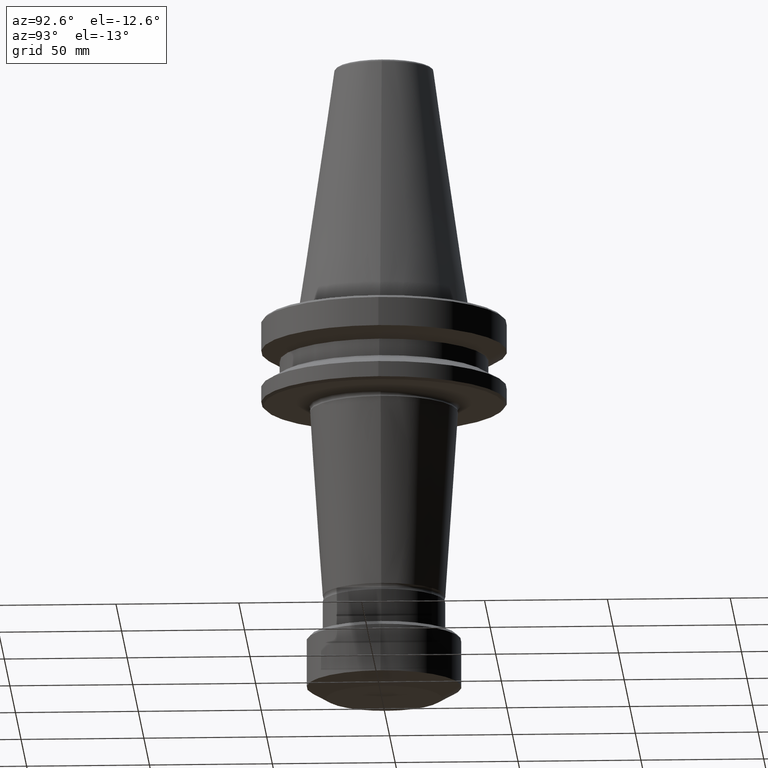
[diagram: clean part render]
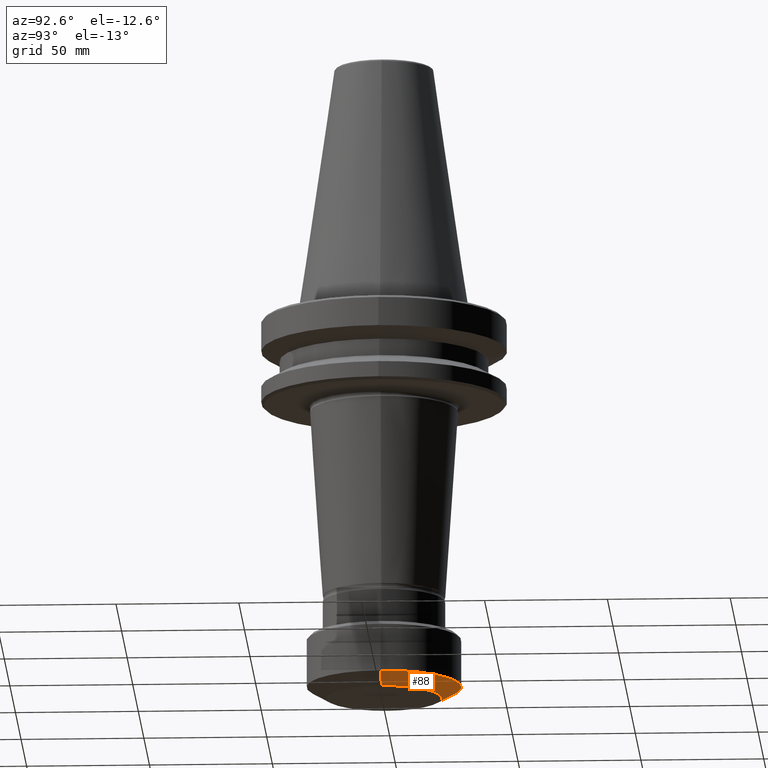
[diagram: same view with one face highlighted and labeled with its STEP entity id]
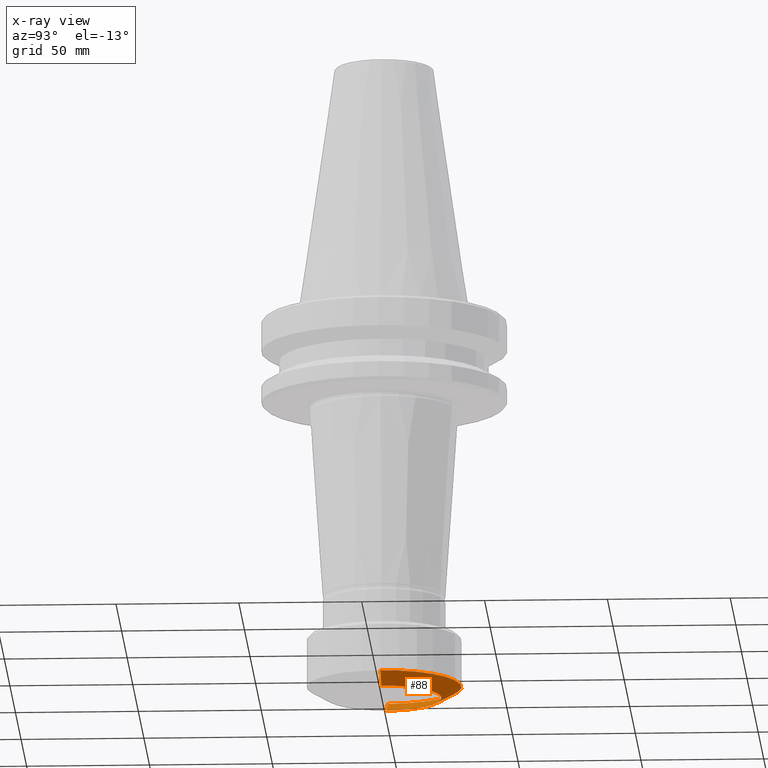
[diagram: x-ray of the same camera — body ghosted, the highlighted face saturated]
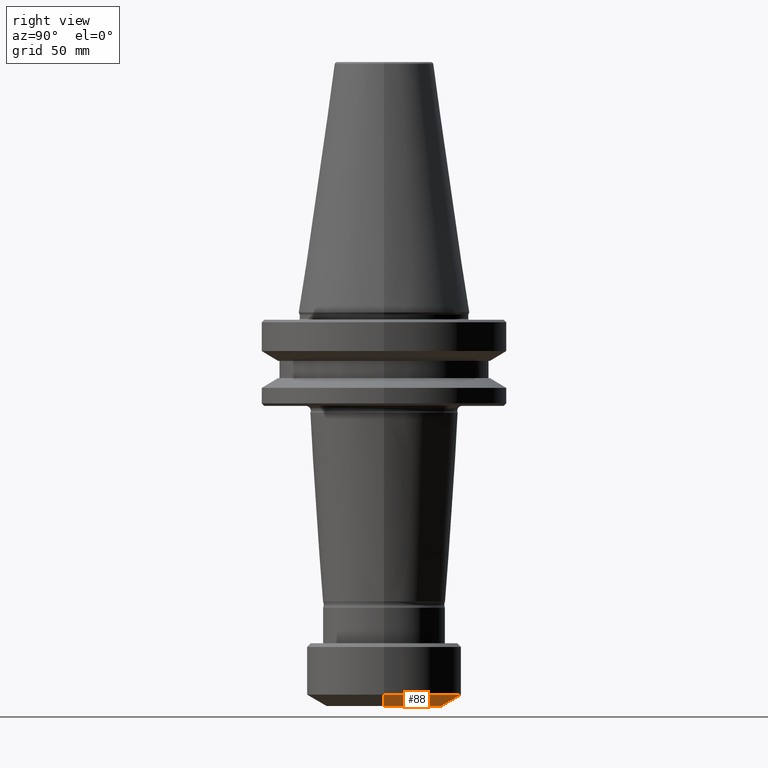
[diagram: same view with one face highlighted and labeled with its STEP entity id]
A machine part, auxiliary view. The second image highlights one B-rep face of the part: STEP entity #88.
The next image is the same camera in x-ray: the body ghosted, the highlighted face saturated — about 0% of this face is hidden behind the body in this view.
A second angle (right view) of the same face is appended — the face is thin or edge-on in the first view.
In plain terms, the highlighted conical surface has half-angle 60 deg.
Its self-contained STEP definition (entity closure, byte-faithful):
#5 = CARTESIAN_POINT ( 'NONE',  ( -23.49999999996406400, 3.367778697653022800E-015, -160.0046026282246900 ) ) ;
#7 = EDGE_CURVE ( 'NONE', #268, #89, #1022, .T. ) ;
#33 = CARTESIAN_POINT ( 'NONE',  ( 0.0000000000000000000, 0.0000000000000000000, -160.0046026282246900 ) ) ;
#88 = ADVANCED_FACE ( 'NONE', ( #470 ), #191, .T. ) ;
#89 = VERTEX_POINT ( 'NONE', #5 ) ;
#191 = CONICAL_SURFACE ( 'NONE', #900, 23.49999999996406400, 1.047197551196597600 ) ;
#251 = CARTESIAN_POINT ( 'NONE',  ( -23.49999999996406400, 2.877919977991879300E-015, -160.0046026282246900 ) ) ;
#259 = DIRECTION ( 'NONE',  ( -0.0000000000000000000, -0.0000000000000000000, 1.000000000000000000 ) ) ;
#260 = DIRECTION ( 'NONE',  ( -0.0000000000000000000, -0.0000000000000000000, 1.000000000000000000 ) ) ;
#264 = VERTEX_POINT ( 'NONE', #948 ) ;
#268 = VERTEX_POINT ( 'NONE', #684 ) ;
#271 = DIRECTION ( 'NONE',  ( -0.8660254037844386000, 1.060575238724906800E-016, 0.5000000000000001100 ) ) ;
#275 = DIRECTION ( 'NONE',  ( 1.000000000000000000, 0.0000000000000000000, 0.0000000000000000000 ) ) ;
#345 = CARTESIAN_POINT ( 'NONE',  ( 23.49999999996406400, 0.0000000000000000000, -160.0046026282246900 ) ) ;
#414 = DIRECTION ( 'NONE',  ( -0.0000000000000000000, -0.0000000000000000000, 1.000000000000000000 ) ) ;
#441 = DIRECTION ( 'NONE',  ( 1.000000000000000000, 0.0000000000000000000, 0.0000000000000000000 ) ) ;
#450 = VERTEX_POINT ( 'NONE', #656 ) ;
#470 = FACE_OUTER_BOUND ( 'NONE', #828, .T. ) ;
#541 = EDGE_CURVE ( 'NONE', #450, #264, #542, .T. ) ;
#542 = CIRCLE ( 'NONE', #646, 31.50000000000002800 ) ;
#547 = CARTESIAN_POINT ( 'NONE',  ( 0.0000000000000000000, 0.0000000000000000000, -160.0046026282246900 ) ) ;
#591 = ORIENTED_EDGE ( 'NONE', *, *, #1266, .F. ) ;
#602 = EDGE_CURVE ( 'NONE', #89, #264, #1300, .T. ) ;
#646 = AXIS2_PLACEMENT_3D ( 'NONE', #1232, #259, #275 ) ;
#656 = CARTESIAN_POINT ( 'NONE',  ( 31.50000000000002800, 0.0000000000000000000, -155.3858004746869300 ) ) ;
#671 = VECTOR ( 'NONE', #788, 1000.000000000000000 ) ;
#684 = CARTESIAN_POINT ( 'NONE',  ( 23.49999999996406400, 0.0000000000000000000, -160.0046026282246900 ) ) ;
#685 = ORIENTED_EDGE ( 'NONE', *, *, #7, .T. ) ;
#788 = DIRECTION ( 'NONE',  ( 0.8660254037844386000, 0.0000000000000000000, 0.5000000000000001100 ) ) ;
#828 = EDGE_LOOP ( 'NONE', ( #685, #983, #1328, #591 ) ) ;
#900 = AXIS2_PLACEMENT_3D ( 'NONE', #33, #414, #1169 ) ;
#948 = CARTESIAN_POINT ( 'NONE',  ( -31.50000000000002800, 3.857637417314166600E-015, -155.3858004746869300 ) ) ;
#983 = ORIENTED_EDGE ( 'NONE', *, *, #602, .T. ) ;
#1022 = CIRCLE ( 'NONE', #1135, 23.49999999996406400 ) ;
#1027 = VECTOR ( 'NONE', #271, 1000.000000000000000 ) ;
#1135 = AXIS2_PLACEMENT_3D ( 'NONE', #547, #260, #441 ) ;
#1169 = DIRECTION ( 'NONE',  ( 1.000000000000000000, 0.0000000000000000000, 0.0000000000000000000 ) ) ;
#1212 = LINE ( 'NONE', #345, #671 ) ;
#1232 = CARTESIAN_POINT ( 'NONE',  ( 0.0000000000000000000, 0.0000000000000000000, -155.3858004746869300 ) ) ;
#1266 = EDGE_CURVE ( 'NONE', #268, #450, #1212, .T. ) ;
#1300 = LINE ( 'NONE', #251, #1027 ) ;
#1328 = ORIENTED_EDGE ( 'NONE', *, *, #541, .F. ) ;